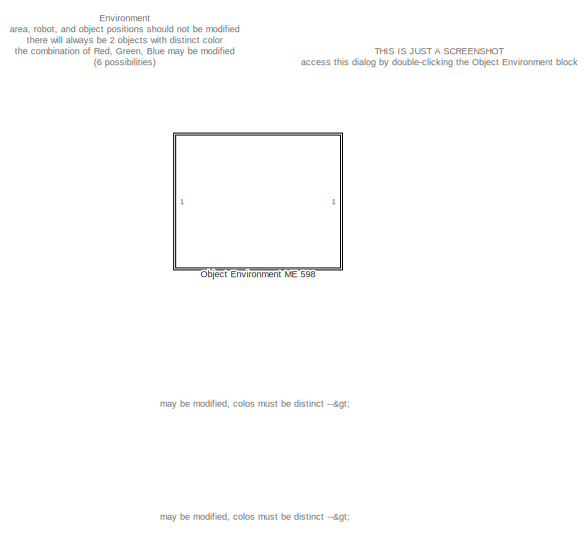
[diagram: root canvas - part 1/3, top left region]
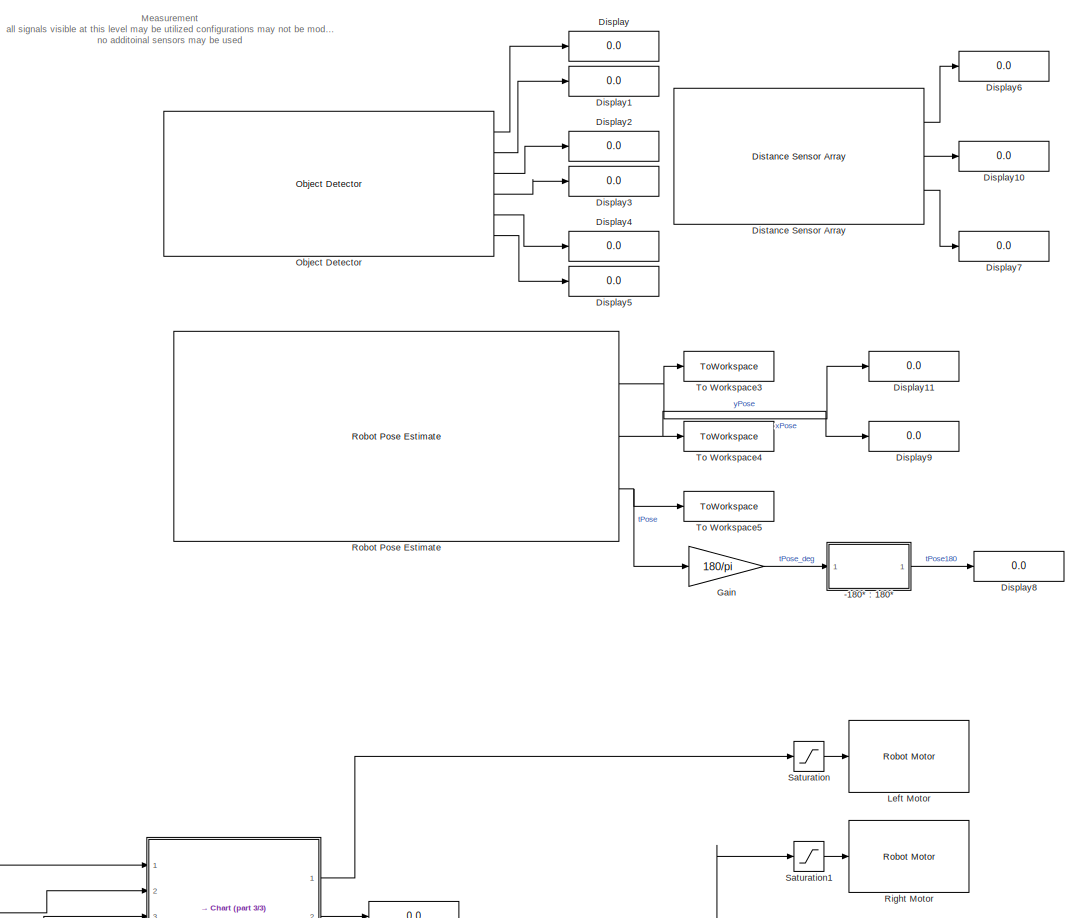
[diagram: root canvas - part 2/3, middle right region]
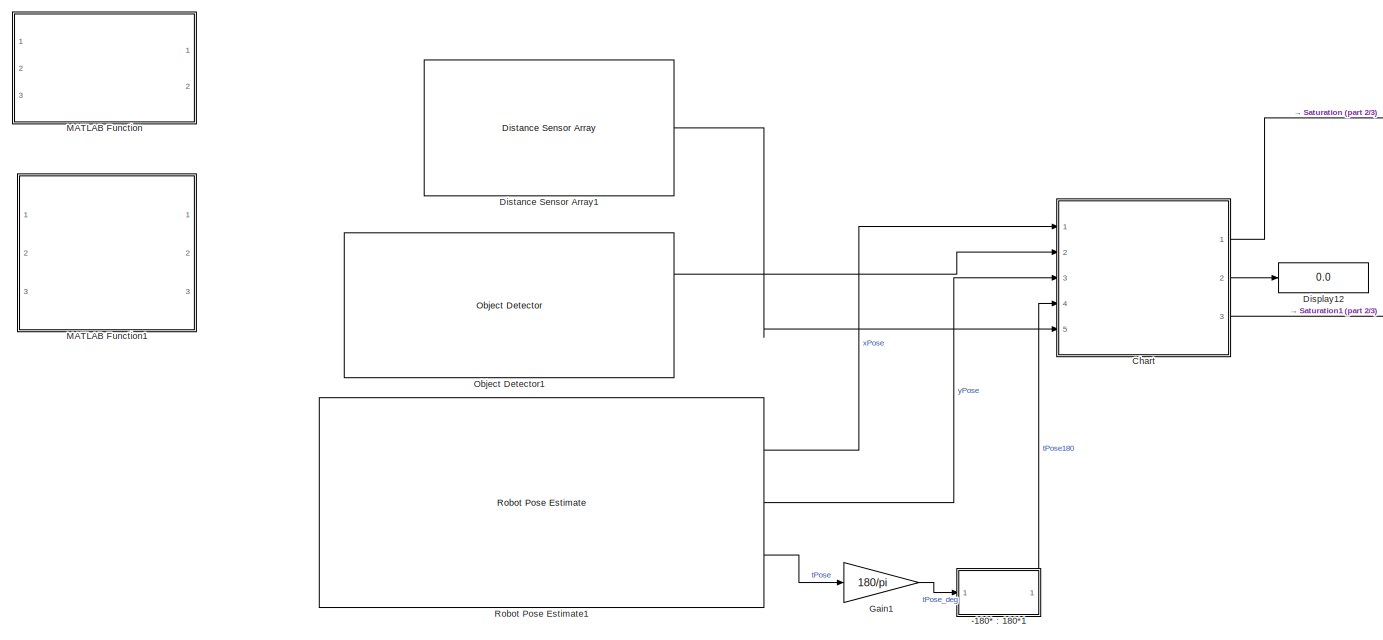
[diagram: root canvas - part 3/3, bottom center region]
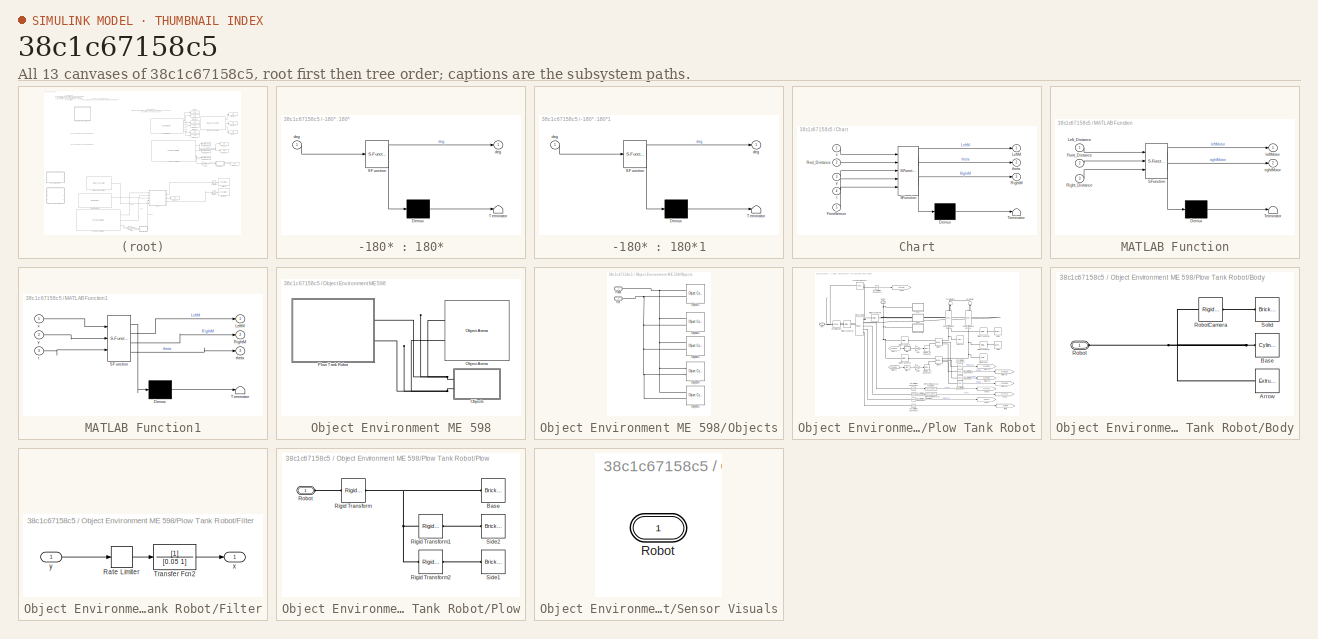
[diagram: thumbnail index - all 13 canvases of the model, root first then tree order]
MODEL slx_38c1c67158c5
KIND model
CONFIG AbsTol = auto
CONFIG EnableMultiTasking = off
CONFIG FixedStep = auto
CONFIG InitFcn = RPInit
CONFIG MaxStep = auto
CONFIG MinStep = auto
CONFIG RelTol = 1e-3
CONFIG SampleTimeConstraint = Unconstrained
CONFIG SolverName = ode23t
CONFIG StartTime = 0.0
CONFIG StopTime = inf
WORKSPACE source: mxarray member
WORKSPACE mapForSim: object (value not decoded)
WORKSPACE occGrid: robotics.BinaryOccupancyGrid (value not decoded)
BLOCK [SubSystem] -180* : 180*
  ErrorFcn = Stateflow.Translate.translate
  PermitHierarchicalResolution = ExplicitOnly
  Ports = [1, 1]
  RequestExecContextInheritance = off
  SFBlockType = MATLAB Function
  TreatAsAtomicUnit = on
BLOCK [Demux] -180* : 180*/ Demux 
  Outputs = 1
  Ports = [1, 1]
BLOCK [S-Function] -180* : 180*/ SFunction 
  EnableBusSupport = on
  FunctionName = sf_sfun
  PortCounts = [1 2]
  Ports = [1, 2]
  SFcnIsStateOwnerBlock = off
  SFunctionDeploymentMode = off
  Tag = Stateflow S-Function 4
BLOCK [Terminator] -180* : 180*/ Terminator 
BLOCK [Outport] -180* : 180*/deg
BLOCK [Inport] -180* : 180*/deg 
BLOCK [SubSystem] -180* : 180*1
  ErrorFcn = Stateflow.Translate.translate
  PermitHierarchicalResolution = ExplicitOnly
  Ports = [1, 1]
  RequestExecContextInheritance = off
  SFBlockType = MATLAB Function
  TreatAsAtomicUnit = on
BLOCK [Demux] -180* : 180*1/ Demux 
  Outputs = 1
  Ports = [1, 1]
BLOCK [S-Function] -180* : 180*1/ SFunction 
  EnableBusSupport = on
  FunctionName = sf_sfun
  PortCounts = [1 2]
  Ports = [1, 2]
  SFcnIsStateOwnerBlock = off
  SFunctionDeploymentMode = off
  Tag = Stateflow S-Function 5
BLOCK [Terminator] -180* : 180*1/ Terminator 
BLOCK [Outport] -180* : 180*1/deg
BLOCK [Inport] -180* : 180*1/deg 
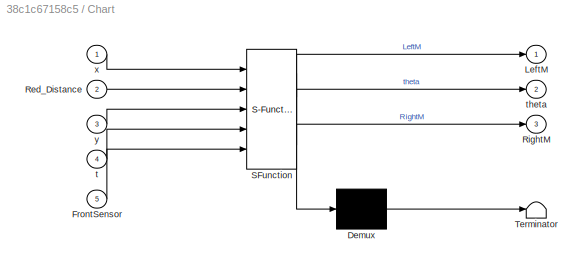
BLOCK [SubSystem] Chart
  ErrorFcn = Stateflow.Translate.translate
  PermitHierarchicalResolution = ExplicitOnly
  Ports = [5, 3]
  RequestExecContextInheritance = off
  SFBlockType = Chart
  TreatAsAtomicUnit = on
BLOCK [Demux] Chart/ Demux 
  Outputs = 1
  Ports = [1, 1]
BLOCK [S-Function] Chart/ SFunction 
  EnableBusSupport = on
  FunctionName = sf_sfun
  PortCounts = [5 4]
  Ports = [5, 4]
  SFcnIsStateOwnerBlock = off
  SFunctionDeploymentMode = off
  Tag = Stateflow S-Function 3
BLOCK [Terminator] Chart/ Terminator 
BLOCK [Inport] Chart/FrontSensor
  Port = 5
BLOCK [Outport] Chart/LeftM
BLOCK [Inport] Chart/Red_Distance
  Port = 2
BLOCK [Outport] Chart/RightM
  Port = 3
BLOCK [Inport] Chart/t
  Port = 4
BLOCK [Outport] Chart/theta
  Port = 2
BLOCK [Inport] Chart/x
BLOCK [Inport] Chart/y
  Port = 3
BLOCK [Display] Display
  Decimation = 1
  Ports = [1]
BLOCK [Display] Display1
  Decimation = 1
  Ports = [1]
BLOCK [Display] Display10
  Decimation = 1
  Ports = [1]
BLOCK [Display] Display11
  Decimation = 1
  Ports = [1]
BLOCK [Display] Display12
  Decimation = 1
  Ports = [1]
BLOCK [Display] Display2
  Decimation = 1
  Ports = [1]
BLOCK [Display] Display3
  Decimation = 1
  Ports = [1]
BLOCK [Display] Display4
  Decimation = 1
  Ports = [1]
BLOCK [Display] Display5
  Decimation = 1
  Ports = [1]
BLOCK [Display] Display6
  Decimation = 1
  Ports = [1]
BLOCK [Display] Display7
  Decimation = 1
  Ports = [1]
BLOCK [Display] Display8
  Decimation = 1
  Ports = [1]
BLOCK [Display] Display9
  Decimation = 1
  Ports = [1]
BLOCK [Reference] Distance Sensor Array  REF=ME598_ProjectLibrary/Distance Sensor Array
  Ports = [0, 3]
  SourceBlock = ME598_ProjectLibrary/Distance Sensor Array
  SourceType = Distance Sensor Array
BLOCK [Reference] Distance Sensor Array1  REF=ME598_ProjectLibrary/Distance Sensor Array
  Ports = [0, 3]
  SourceBlock = ME598_ProjectLibrary/Distance Sensor Array
  SourceType = Distance Sensor Array
BLOCK [Gain] Gain
  Gain = 180/pi
BLOCK [Gain] Gain1
  Gain = 180/pi
BLOCK [Reference] Left Motor  REF=RoboticsPlayground/Basic Sensors and Actuators/Robot Motor
  Ports = [1]
  SourceBlock = RoboticsPlayground/Basic Sensors and Actuators/Robot Motor
  SourceProductName = Robotics Playground
  SourceType = RP Robot Motor
BLOCK [SubSystem] MATLAB Function
  Commented = on
  ErrorFcn = Stateflow.Translate.translate
  PermitHierarchicalResolution = ExplicitOnly
  Ports = [3, 2]
  RequestExecContextInheritance = off
  SFBlockType = MATLAB Function
  TreatAsAtomicUnit = on
BLOCK [Demux] MATLAB Function/ Demux 
  Outputs = 1
  Ports = [1, 1]
BLOCK [S-Function] MATLAB Function/ SFunction 
  EnableBusSupport = on
  FunctionName = sf_sfun
  PortCounts = [3 3]
  Ports = [3, 3]
  SFcnIsStateOwnerBlock = off
  SFunctionDeploymentMode = off
  Tag = Stateflow S-Function 2
BLOCK [Terminator] MATLAB Function/ Terminator 
BLOCK [Inport] MATLAB Function/Front_Distance
  Port = 2
BLOCK [Inport] MATLAB Function/Left_Distance
BLOCK [Inport] MATLAB Function/Right_Distance
  Port = 3
BLOCK [Outport] MATLAB Function/leftMotor
BLOCK [Outport] MATLAB Function/rightMotor
  Port = 2
BLOCK [SubSystem] MATLAB Function1
  Commented = on
  ErrorFcn = Stateflow.Translate.translate
  PermitHierarchicalResolution = ExplicitOnly
  Ports = [3, 3]
  RequestExecContextInheritance = off
  SFBlockType = MATLAB Function
  TreatAsAtomicUnit = on
BLOCK [Demux] MATLAB Function1/ Demux 
  Outputs = 1
  Ports = [1, 1]
BLOCK [S-Function] MATLAB Function1/ SFunction 
  EnableBusSupport = on
  FunctionName = sf_sfun
  PortCounts = [3 4]
  Ports = [3, 4]
  SFcnIsStateOwnerBlock = off
  SFunctionDeploymentMode = off
  Tag = Stateflow S-Function 1
BLOCK [Terminator] MATLAB Function1/ Terminator 
BLOCK [Outport] MATLAB Function1/LeftM
BLOCK [Outport] MATLAB Function1/RightM
  Port = 2
BLOCK [Inport] MATLAB Function1/t
  Port = 3
BLOCK [Outport] MATLAB Function1/theta
  Port = 3
BLOCK [Inport] MATLAB Function1/x
BLOCK [Inport] MATLAB Function1/y
  Port = 2
BLOCK [Reference] Object Detector  REF=ME598_ProjectLibrary/Object Detector
  Ports = [0, 6]
  SourceBlock = ME598_ProjectLibrary/Object Detector
  SourceType = Object Detector
BLOCK [Reference] Object Detector1  REF=ME598_ProjectLibrary/Object Detector
  Ports = [0, 6]
  SourceBlock = ME598_ProjectLibrary/Object Detector
  SourceType = Object Detector
BLOCK [SubSystem] Object Environment ME 598
  CopyFcn = set_param(gcs,'InitFcn','RPInit');\nset_param(gcs,'Solver','ode23t');\nset_param(gcs, 'EnablePacing', 'on')\nset_param(gcs, 'PacingRate', 1)
  Ports = []
  RequestExecContextInheritance = off
BLOCK [Reference] Object Environment ME 598/Object Arena  REF=RP_Simulator_Components/Object Arena
  Ports = [0, 0, 0, 0, 0, 2]
  SourceBlock = RP_Simulator_Components/Object Arena
  SourceProductName = RP Simulator Components
  SourceType = RP Grid Arena
BLOCK [SubSystem] Object Environment ME 598/Objects
  Ports = [0, 0, 0, 0, 0, 2]
  RequestExecContextInheritance = off
BLOCK [Reference] Object Environment ME 598/Objects/Object1  REF=RP_Simulator_Components/Object Contact-Plow Robot
  Ports = [0, 0, 0, 0, 0, 2]
  SourceBlock = RP_Simulator_Components/Object Contact-Plow Robot
  SourceProductName = RP Simulator Components
  SourceType = RP Rectangle-Disc obstacle
BLOCK [Reference] Object Environment ME 598/Objects/Object2  REF=RP_Simulator_Components/Object Contact-Plow Robot
  Commented = on
  Ports = [0, 0, 0, 0, 0, 2]
  SourceBlock = RP_Simulator_Components/Object Contact-Plow Robot
  SourceProductName = RP Simulator Components
  SourceType = RP Rectangle-Disc obstacle
BLOCK [Reference] Object Environment ME 598/Objects/Object3  REF=RP_Simulator_Components/Object Contact-Plow Robot
  Ports = [0, 0, 0, 0, 0, 2]
  SourceBlock = RP_Simulator_Components/Object Contact-Plow Robot
  SourceProductName = RP Simulator Components
  SourceType = RP Rectangle-Disc obstacle
BLOCK [Reference] Object Environment ME 598/Objects/Object4  REF=RP_Simulator_Components/Object Contact-Plow Robot
  Commented = on
  Ports = [0, 0, 0, 0, 0, 2]
  SourceBlock = RP_Simulator_Components/Object Contact-Plow Robot
  SourceProductName = RP Simulator Components
  SourceType = RP Rectangle-Disc obstacle
BLOCK [Reference] Object Environment ME 598/Objects/Object5  REF=RP_Simulator_Components/Object Contact-Plow Robot
  Commented = on
  Ports = [0, 0, 0, 0, 0, 2]
  SourceBlock = RP_Simulator_Components/Object Contact-Plow Robot
  SourceProductName = RP Simulator Components
  SourceType = RP Rectangle-Disc obstacle
BLOCK [PMIOPort] Object Environment ME 598/Objects/Ref
  Port = 2
  Side = Left
BLOCK [PMIOPort] Object Environment ME 598/Objects/Robot
  Side = Left
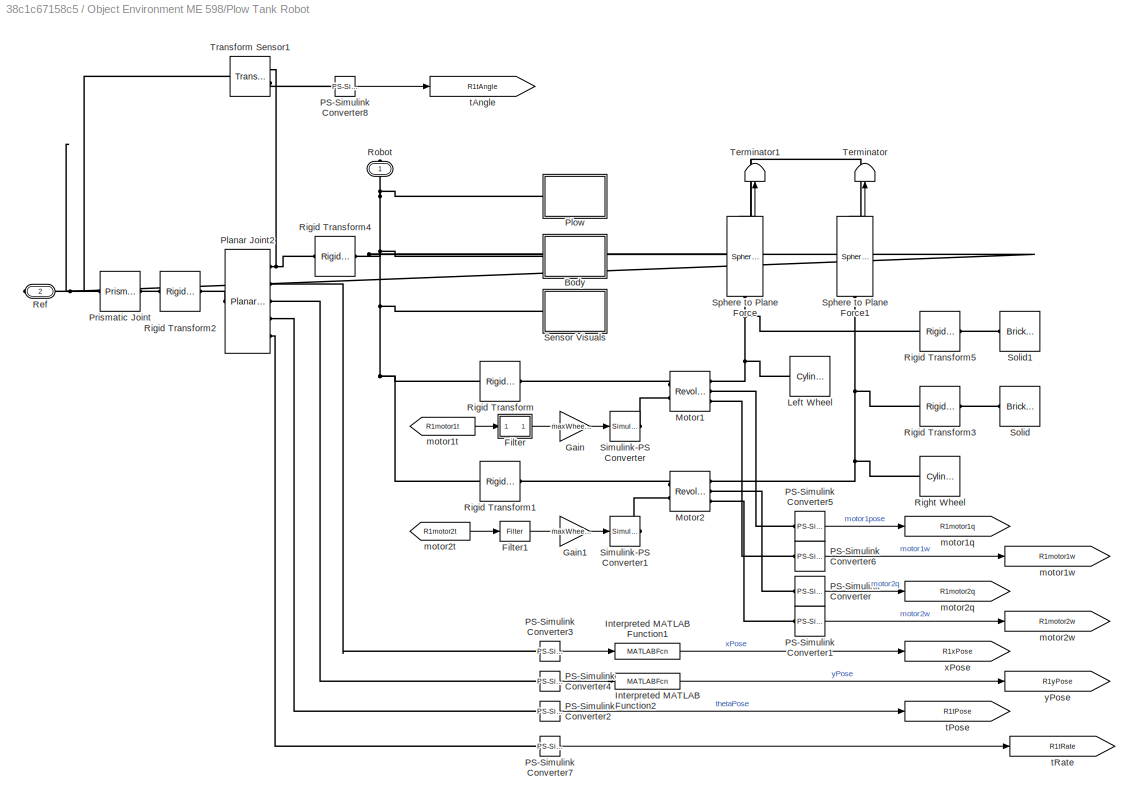
BLOCK [SubSystem] Object Environment ME 598/Plow Tank Robot
  AncestorBlock = RP_Simulator_Components/Plow Tank Robot
  Ports = [0, 0, 0, 0, 0, 0, 2]
  RequestExecContextInheritance = off
BLOCK [SubSystem] Object Environment ME 598/Plow Tank Robot/Body
  Ports = [0, 0, 0, 0, 0, 1]
  RequestExecContextInheritance = off
BLOCK [Reference] Object Environment ME 598/Plow Tank Robot/Body/Arrow  REF=sm_lib/Body Elements/Extruded Solid
  Ports = [0, 0, 0, 0, 0, 0, 1]
  SourceBlock = sm_lib/Body Elements/Extruded Solid
  SourceProductBaseCode = MS
  SourceType = Extruded Solid
BLOCK [Reference] Object Environment ME 598/Plow Tank Robot/Body/Base  REF=sm_lib/Body Elements/Cylindrical Solid
  Ports = [0, 0, 0, 0, 0, 0, 1]
  SourceBlock = sm_lib/Body Elements/Cylindrical Solid
  SourceProductBaseCode = MS
  SourceType = Cylindrical Solid
BLOCK [PMIOPort] Object Environment ME 598/Plow Tank Robot/Body/Robot
  Side = Left
BLOCK [Reference] Object Environment ME 598/Plow Tank Robot/Body/RobotCamera  REF=sm_lib/Frames and
Transforms/Rigid
Transform
  Ports = [0, 0, 0, 0, 0, 1, 1]
  SourceBlock = sm_lib/Frames and\nTransforms/Rigid\nTransform
  SourceProductBaseCode = MS
  SourceType = Rigid\nTransform
BLOCK [Reference] Object Environment ME 598/Plow Tank Robot/Body/Solid  REF=sm_lib/Body Elements/Brick Solid
  Ports = [0, 0, 0, 0, 0, 0, 1]
  SourceBlock = sm_lib/Body Elements/Brick Solid
  SourceProductBaseCode = MS
  SourceType = Brick Solid
BLOCK [SubSystem] Object Environment ME 598/Plow Tank Robot/Filter
  Ports = [1, 1]
  RequestExecContextInheritance = off
BLOCK [RateLimiter] Object Environment ME 598/Plow Tank Robot/Filter/Rate Limiter
  FallingSlewLimit = -300
  RisingSlewLimit = 300
  SampleTimeMode = inherited
BLOCK [TransferFcn] Object Environment ME 598/Plow Tank Robot/Filter/Transfer Fcn2
  Denominator = [0.05 1]
BLOCK [Outport] Object Environment ME 598/Plow Tank Robot/Filter/x
  VectorParamsAs1DForOutWhenUnconnected = off
BLOCK [Inport] Object Environment ME 598/Plow Tank Robot/Filter/y
BLOCK [Reference] Object Environment ME 598/Plow Tank Robot/Filter1  REF=RP_Simulator_Components/Contact Tank Robot/Filter
  Ports = [1, 1]
  SourceBlock = RP_Simulator_Components/Contact Tank Robot/Filter
  SourceProductName = RP Simulator Components
  SourceType = SubSystem
BLOCK [Gain] Object Environment ME 598/Plow Tank Robot/Gain
  Gain = maxWheelTorque/127
BLOCK [Gain] Object Environment ME 598/Plow Tank Robot/Gain1
  Gain = maxWheelTorque/127
BLOCK [MATLABFcn] Object Environment ME 598/Plow Tank Robot/Interpreted MATLAB Function1
  MATLABFcn = u+floorSize(1)/2
  Ports = [1, 1]
BLOCK [MATLABFcn] Object Environment ME 598/Plow Tank Robot/Interpreted MATLAB Function2
  MATLABFcn = u+floorSize(2)/2
  Ports = [1, 1]
BLOCK [Reference] Object Environment ME 598/Plow Tank Robot/Left Wheel  REF=sm_lib/Body Elements/Cylindrical Solid
  Ports = [0, 0, 0, 0, 0, 0, 1]
  SourceBlock = sm_lib/Body Elements/Cylindrical Solid
  SourceProductBaseCode = MS
  SourceType = Cylindrical Solid
BLOCK [Reference] Object Environment ME 598/Plow Tank Robot/Motor1  REF=sm_lib/Joints/Revolute Joint
  Ports = [0, 0, 0, 0, 0, 2, 3]
  SourceBlock = sm_lib/Joints/Revolute Joint
  SourceProductBaseCode = MS
  SourceType = Revolute Joint
BLOCK [Reference] Object Environment ME 598/Plow Tank Robot/Motor2  REF=sm_lib/Joints/Revolute Joint
  Ports = [0, 0, 0, 0, 0, 2, 3]
  SourceBlock = sm_lib/Joints/Revolute Joint
  SourceProductBaseCode = MS
  SourceType = Revolute Joint
BLOCK [Reference] Object Environment ME 598/Plow Tank Robot/PS-Simulink Converter  REF=nesl_utility/PS-Simulink
Converter
  Ports = [0, 1, 0, 0, 0, 1]
  SourceBlock = nesl_utility/PS-Simulink\nConverter
  SourceProductBaseCode = PW,SS
  SourceType = PS-Simulink\nConverter
BLOCK [Reference] Object Environment ME 598/Plow Tank Robot/PS-Simulink Converter1  REF=nesl_utility/PS-Simulink
Converter
  Ports = [0, 1, 0, 0, 0, 1]
  SourceBlock = nesl_utility/PS-Simulink\nConverter
  SourceProductBaseCode = PW,SS
  SourceType = PS-Simulink\nConverter
BLOCK [Reference] Object Environment ME 598/Plow Tank Robot/PS-Simulink Converter2  REF=nesl_utility/PS-Simulink
Converter
  Ports = [0, 1, 0, 0, 0, 1]
  SourceBlock = nesl_utility/PS-Simulink\nConverter
  SourceProductBaseCode = PW,SS
  SourceType = PS-Simulink\nConverter
BLOCK [Reference] Object Environment ME 598/Plow Tank Robot/PS-Simulink Converter3  REF=nesl_utility/PS-Simulink
Converter
  Ports = [0, 1, 0, 0, 0, 1]
  SourceBlock = nesl_utility/PS-Simulink\nConverter
  SourceProductBaseCode = PW,SS
  SourceType = PS-Simulink\nConverter
BLOCK [Reference] Object Environment ME 598/Plow Tank Robot/PS-Simulink Converter4  REF=nesl_utility/PS-Simulink
Converter
  Ports = [0, 1, 0, 0, 0, 1]
  SourceBlock = nesl_utility/PS-Simulink\nConverter
  SourceProductBaseCode = PW,SS
  SourceType = PS-Simulink\nConverter
BLOCK [Reference] Object Environment ME 598/Plow Tank Robot/PS-Simulink Converter5  REF=nesl_utility/PS-Simulink
Converter
  Ports = [0, 1, 0, 0, 0, 1]
  SourceBlock = nesl_utility/PS-Simulink\nConverter
  SourceProductBaseCode = PW,SS
  SourceType = PS-Simulink\nConverter
BLOCK [Reference] Object Environment ME 598/Plow Tank Robot/PS-Simulink Converter6  REF=nesl_utility/PS-Simulink
Converter
  Ports = [0, 1, 0, 0, 0, 1]
  SourceBlock = nesl_utility/PS-Simulink\nConverter
  SourceProductBaseCode = PW,SS
  SourceType = PS-Simulink\nConverter
BLOCK [Reference] Object Environment ME 598/Plow Tank Robot/PS-Simulink Converter7  REF=nesl_utility/PS-Simulink
Converter
  Ports = [0, 1, 0, 0, 0, 1]
  SourceBlock = nesl_utility/PS-Simulink\nConverter
  SourceProductBaseCode = PW,SS
  SourceType = PS-Simulink\nConverter
BLOCK [Reference] Object Environment ME 598/Plow Tank Robot/PS-Simulink Converter8  REF=nesl_utility/PS-Simulink
Converter
  Ports = [0, 1, 0, 0, 0, 1]
  SourceBlock = nesl_utility/PS-Simulink\nConverter
  SourceProductBaseCode = PW,SS
  SourceType = PS-Simulink\nConverter
BLOCK [Reference] Object Environment ME 598/Plow Tank Robot/Planar Joint2  REF=sm_lib/Joints/Planar Joint
  Ports = [0, 0, 0, 0, 0, 1, 5]
  SourceBlock = sm_lib/Joints/Planar Joint
  SourceProductBaseCode = MS
  SourceType = Planar Joint
BLOCK [SubSystem] Object Environment ME 598/Plow Tank Robot/Plow
  Ports = [0, 0, 0, 0, 0, 1]
  RequestExecContextInheritance = off
BLOCK [Reference] Object Environment ME 598/Plow Tank Robot/Plow/Base  REF=sm_lib/Body Elements/Brick Solid
  Ports = [0, 0, 0, 0, 0, 0, 1]
  SourceBlock = sm_lib/Body Elements/Brick Solid
  SourceProductBaseCode = MS
  SourceType = Brick Solid
BLOCK [Reference] Object Environment ME 598/Plow Tank Robot/Plow/Rigid Transform  REF=sm_lib/Frames and
Transforms/Rigid
Transform
  Ports = [0, 0, 0, 0, 0, 1, 1]
  SourceBlock = sm_lib/Frames and\nTransforms/Rigid\nTransform
  SourceProductBaseCode = MS
  SourceType = Rigid\nTransform
BLOCK [Reference] Object Environment ME 598/Plow Tank Robot/Plow/Rigid Transform1  REF=sm_lib/Frames and
Transforms/Rigid
Transform
  Ports = [0, 0, 0, 0, 0, 1, 1]
  SourceBlock = sm_lib/Frames and\nTransforms/Rigid\nTransform
  SourceProductBaseCode = MS
  SourceType = Rigid\nTransform
BLOCK [Reference] Object Environment ME 598/Plow Tank Robot/Plow/Rigid Transform2  REF=sm_lib/Frames and
Transforms/Rigid
Transform
  Ports = [0, 0, 0, 0, 0, 1, 1]
  SourceBlock = sm_lib/Frames and\nTransforms/Rigid\nTransform
  SourceProductBaseCode = MS
  SourceType = Rigid\nTransform
BLOCK [PMIOPort] Object Environment ME 598/Plow Tank Robot/Plow/Robot
  Side = Left
BLOCK [Reference] Object Environment ME 598/Plow Tank Robot/Plow/Side1  REF=sm_lib/Body Elements/Brick Solid
  Ports = [0, 0, 0, 0, 0, 0, 1]
  SourceBlock = sm_lib/Body Elements/Brick Solid
  SourceProductBaseCode = MS
  SourceType = Brick Solid
BLOCK [Reference] Object Environment ME 598/Plow Tank Robot/Plow/Side2  REF=sm_lib/Body Elements/Brick Solid
  Ports = [0, 0, 0, 0, 0, 0, 1]
  SourceBlock = sm_lib/Body Elements/Brick Solid
  SourceProductBaseCode = MS
  SourceType = Brick Solid
BLOCK [Reference] Object Environment ME 598/Plow Tank Robot/Prismatic Joint  REF=sm_lib/Joints/Prismatic
Joint
  Ports = [0, 0, 0, 0, 0, 1, 1]
  SourceBlock = sm_lib/Joints/Prismatic\nJoint
  SourceProductBaseCode = MS
  SourceType = Prismatic\nJoint
BLOCK [PMIOPort] Object Environment ME 598/Plow Tank Robot/Ref
  Port = 2
  Side = Right
BLOCK [Reference] Object Environment ME 598/Plow Tank Robot/Right Wheel  REF=sm_lib/Body Elements/Cylindrical Solid
  NameLocation = top
  Ports = [0, 0, 0, 0, 0, 0, 1]
  SourceBlock = sm_lib/Body Elements/Cylindrical Solid
  SourceProductBaseCode = MS
  SourceType = Cylindrical Solid
BLOCK [Reference] Object Environment ME 598/Plow Tank Robot/Rigid Transform  REF=sm_lib/Frames and
Transforms/Rigid
Transform
  Ports = [0, 0, 0, 0, 0, 1, 1]
  SourceBlock = sm_lib/Frames and\nTransforms/Rigid\nTransform
  SourceProductBaseCode = MS
  SourceType = Rigid\nTransform
BLOCK [Reference] Object Environment ME 598/Plow Tank Robot/Rigid Transform1  REF=sm_lib/Frames and
Transforms/Rigid
Transform
  Ports = [0, 0, 0, 0, 0, 1, 1]
  SourceBlock = sm_lib/Frames and\nTransforms/Rigid\nTransform
  SourceProductBaseCode = MS
  SourceType = Rigid\nTransform
BLOCK [Reference] Object Environment ME 598/Plow Tank Robot/Rigid Transform2  REF=sm_lib/Frames and
Transforms/Rigid
Transform
  Ports = [0, 0, 0, 0, 0, 1, 1]
  SourceBlock = sm_lib/Frames and\nTransforms/Rigid\nTransform
  SourceProductBaseCode = MS
  SourceType = Rigid\nTransform
BLOCK [Reference] Object Environment ME 598/Plow Tank Robot/Rigid Transform3  REF=sm_lib/Frames and
Transforms/Rigid
Transform
  Ports = [0, 0, 0, 0, 0, 1, 1]
  SourceBlock = sm_lib/Frames and\nTransforms/Rigid\nTransform
  SourceProductBaseCode = MS
  SourceType = Rigid\nTransform
BLOCK [Reference] Object Environment ME 598/Plow Tank Robot/Rigid Transform4  REF=sm_lib/Frames and
Transforms/Rigid
Transform
  Ports = [0, 0, 0, 0, 0, 1, 1]
  SourceBlock = sm_lib/Frames and\nTransforms/Rigid\nTransform
  SourceProductBaseCode = MS
  SourceType = Rigid\nTransform
BLOCK [Reference] Object Environment ME 598/Plow Tank Robot/Rigid Transform5  REF=sm_lib/Frames and
Transforms/Rigid
Transform
  Ports = [0, 0, 0, 0, 0, 1, 1]
  SourceBlock = sm_lib/Frames and\nTransforms/Rigid\nTransform
  SourceProductBaseCode = MS
  SourceType = Rigid\nTransform
BLOCK [PMIOPort] Object Environment ME 598/Plow Tank Robot/Robot
  NameLocation = left
  Side = Right
BLOCK [SubSystem] Object Environment ME 598/Plow Tank Robot/Sensor Visuals
  Ports = [0, 0, 0, 0, 0, 1]
  RequestExecContextInheritance = off
BLOCK [PMIOPort] Object Environment ME 598/Plow Tank Robot/Sensor Visuals/Robot
  Side = Left
BLOCK [Reference] Object Environment ME 598/Plow Tank Robot/Simulink-PS Converter  REF=nesl_utility/Simulink-PS
Converter
  Ports = [1, 0, 0, 0, 0, 0, 1]
  SourceBlock = nesl_utility/Simulink-PS\nConverter
  SourceProductBaseCode = PW,SS
  SourceType = Simulink-PS\nConverter
BLOCK [Reference] Object Environment ME 598/Plow Tank Robot/Simulink-PS Converter1  REF=nesl_utility/Simulink-PS
Converter
  Ports = [1, 0, 0, 0, 0, 0, 1]
  SourceBlock = nesl_utility/Simulink-PS\nConverter
  SourceProductBaseCode = PW,SS
  SourceType = Simulink-PS\nConverter
BLOCK [Reference] Object Environment ME 598/Plow Tank Robot/Solid  REF=sm_lib/Body Elements/Brick Solid
  NameLocation = top
  Ports = [0, 0, 0, 0, 0, 0, 1]
  SourceBlock = sm_lib/Body Elements/Brick Solid
  SourceProductBaseCode = MS
  SourceType = Brick Solid
BLOCK [Reference] Object Environment ME 598/Plow Tank Robot/Solid1  REF=sm_lib/Body Elements/Brick Solid
  NameLocation = top
  Ports = [0, 0, 0, 0, 0, 0, 1]
  SourceBlock = sm_lib/Body Elements/Brick Solid
  SourceProductBaseCode = MS
  SourceType = Brick Solid
BLOCK [Reference] Object Environment ME 598/Plow Tank Robot/Sphere to Plane Force  REF=Contact_Forces_Lib/3D/Sphere to Plane Force
  NameLocation = right
  Ports = [0, 1, 0, 0, 0, 1, 1]
  SourceBlock = Contact_Forces_Lib/3D/Sphere to Plane Force
  SourceProductName = Simscape Multibody Contact Forces Library
  SourceType = Sphere to Plane Force
BLOCK [Reference] Object Environment ME 598/Plow Tank Robot/Sphere to Plane Force1  REF=Contact_Forces_Lib/3D/Sphere to Plane Force
  NameLocation = right
  Ports = [0, 1, 0, 0, 0, 1, 1]
  SourceBlock = Contact_Forces_Lib/3D/Sphere to Plane Force
  SourceProductName = Simscape Multibody Contact Forces Library
  SourceType = Sphere to Plane Force
BLOCK [Terminator] Object Environment ME 598/Plow Tank Robot/Terminator
  NameLocation = right
BLOCK [Terminator] Object Environment ME 598/Plow Tank Robot/Terminator1
  NameLocation = right
BLOCK [Reference] Object Environment ME 598/Plow Tank Robot/Transform Sensor1  REF=sm_lib/Frames and
Transforms/Transform
Sensor
  Ports = [0, 0, 0, 0, 0, 1, 2]
  SourceBlock = sm_lib/Frames and\nTransforms/Transform\nSensor
  SourceProductBaseCode = MS
  SourceType = Transform\nSensor
BLOCK [Goto] Object Environment ME 598/Plow Tank Robot/motor1q
  GotoTag = R1motor1q
  TagVisibility = global
BLOCK [From] Object Environment ME 598/Plow Tank Robot/motor1t
  GotoTag = R1motor1t
  TagVisibility = global
BLOCK [Goto] Object Environment ME 598/Plow Tank Robot/motor1w
  GotoTag = R1motor1w
  TagVisibility = global
BLOCK [Goto] Object Environment ME 598/Plow Tank Robot/motor2q
  GotoTag = R1motor2q
  TagVisibility = global
BLOCK [From] Object Environment ME 598/Plow Tank Robot/motor2t
  GotoTag = R1motor2t
  TagVisibility = global
BLOCK [Goto] Object Environment ME 598/Plow Tank Robot/motor2w
  GotoTag = R1motor2w
  TagVisibility = global
BLOCK [Goto] Object Environment ME 598/Plow Tank Robot/tAngle
  GotoTag = R1tAngle
  TagVisibility = global
BLOCK [Goto] Object Environment ME 598/Plow Tank Robot/tPose
  GotoTag = R1tPose
  TagVisibility = global
BLOCK [Goto] Object Environment ME 598/Plow Tank Robot/tRate
  GotoTag = R1tRate
  TagVisibility = global
BLOCK [Goto] Object Environment ME 598/Plow Tank Robot/xPose
  GotoTag = R1xPose
  TagVisibility = global
BLOCK [Goto] Object Environment ME 598/Plow Tank Robot/yPose
  GotoTag = R1yPose
  TagVisibility = global
BLOCK [Reference] Right Motor  REF=RoboticsPlayground/Basic Sensors and Actuators/Robot Motor
  Ports = [1]
  SourceBlock = RoboticsPlayground/Basic Sensors and Actuators/Robot Motor
  SourceProductName = Robotics Playground
  SourceType = RP Robot Motor
BLOCK [Reference] Robot Pose Estimate  REF=ME598_ProjectLibrary/Robot Pose Estimate
  Ports = [0, 3]
  SourceBlock = ME598_ProjectLibrary/Robot Pose Estimate
  SourceType = Robot Pose Estimate
BLOCK [Reference] Robot Pose Estimate1  REF=ME598_ProjectLibrary/Robot Pose Estimate
  Ports = [0, 3]
  SourceBlock = ME598_ProjectLibrary/Robot Pose Estimate
  SourceType = Robot Pose Estimate
BLOCK [Saturate] Saturation
  LowerLimit = -127
  UpperLimit = 127
BLOCK [Saturate] Saturation1
  LowerLimit = -127
  UpperLimit = 127
BLOCK [ToWorkspace] To Workspace3
  FixptAsFi = on
  MaxDataPoints = inf
  Ports = [1]
  SampleTime = -1
  VariableName = xPose
BLOCK [ToWorkspace] To Workspace4
  FixptAsFi = on
  MaxDataPoints = inf
  Ports = [1]
  SampleTime = -1
  VariableName = yPose
BLOCK [ToWorkspace] To Workspace5
  FixptAsFi = on
  MaxDataPoints = inf
  Ports = [1]
  SampleTime = -1
  VariableName = tPose
ANNOTATION (root): may be modified, colos must be distinct -->
ANNOTATION (root): Environment area, robot, and object positions should not be modified there will always be 2 objects with distinct color the combination of Red, Green, Blue may be modified (6 possibilities)
ANNOTATION (root): Measurement all signals visible at this level may be utilized configurations may not be modified no additoinal sensors may be used
ANNOTATION (root): THIS IS JUST A SCREENSHOT access this dialog by double-clicking the Object Environment block
LINE -180* : 180*1:1 -> Chart:4
LINE -180* : 180*:1 -> Display8:1
LINE Chart:1 -> Saturation:1
LINE Chart:2 -> Display12:1
LINE Chart:3 -> Saturation1:1
LINE Distance Sensor Array1:2 -> Chart:5
LINE Distance Sensor Array:1 -> Display6:1
LINE Distance Sensor Array:2 -> Display10:1
LINE Distance Sensor Array:3 -> Display7:1
LINE Gain1:1 -> -180* : 180*1:1
LINE Gain:1 -> -180* : 180*:1
LINE Object Detector1:2 -> Chart:2
LINE Object Detector:1 -> Display:1
LINE Object Detector:2 -> Display1:1
LINE Object Detector:3 -> Display2:1
LINE Object Detector:4 -> Display3:1
LINE Object Detector:5 -> Display4:1
LINE Object Detector:6 -> Display5:1
LINE Robot Pose Estimate1:1 -> Chart:1
LINE Robot Pose Estimate1:2 -> Chart:3
LINE Robot Pose Estimate1:3 -> Gain1:1
NET Robot Pose Estimate:1 -> Display11:1, To Workspace3:1
NET Robot Pose Estimate:2 -> Display9:1, To Workspace4:1
NET Robot Pose Estimate:3 -> Gain:1, To Workspace5:1
LINE Saturation1:1 -> Right Motor:1
LINE Saturation:1 -> Left Motor:1
note: NET lines group one-source signal fan-out (src -> all destinations, sorted); 1:1 wires keep LINE
CHART Chart states=13 transitions=15
  STATE_LABEL 'GoToFirstPuck\n'
  STATE_LABEL 'DriveForward1\nLeftM = 80;\nRightM = 80;'
  STATE_LABEL 'PivotLeft\n\nentry, during:\ntheta = atan2d(1.5-y,0-x);\nLeftM = -40;\nRightM = 40;\n'
  STATE_LABEL 'Stop\n\nLeftM = 0;\nRightM = 0;\n'
  STATE_LABEL '[t>theta-5 && t<theta+2]'
  STATE_LABEL '[Red_Distance < 0.42 && Red_Distance > 0.4]'
  STATE_LABEL 'DriveForward1\nLeftM = 80;\nRightM = 80;'
  STATE_LABEL 'PivotLeft\n\nentry, during:\ntheta = atan2d(1.5-y,0-x);\nLeftM = -40;\nRightM = 40;\n'
  STATE_LABEL 'Stop\n\nLeftM = 0;\nRightM = 0;\n'
  STATE_LABEL 'DriveForward\n\nLMotor = 100\nRMotor = 100'
  STATE_LABEL 'PivotRight\n\nLMotor = -100\nRMotor = 100'
  STATE_LABEL 'GoToFirstEndzone'
  STATE_LABEL 'PivotRight\n\nentry,during:\ntheta = atan2d(2.3-y, 2.3-x);\nLeftM = 40;\nRightM = -40;'
  STATE_LABEL 'DriveForward2\nLeftM = 80;\nRightM = 80;'
  STATE_LABEL 'Reverse\nLeftM = -50;\nRightM = -50;'
  STATE_LABEL 'Stop2\nLeftM =0;\nRightM = 0;'
  STATE_LABEL '[t>theta-5 && t< theta+2]'
  STATE_LABEL '[FrontSensor <0.2]'
  STATE_LABEL 'after(3,sec)'
  STATE_LABEL 'PivotRight\n\nentry,during:\ntheta = atan2d(2.3-y, 2.3-x);\nLeftM = 40;\nRightM = -40;'
  STATE_LABEL 'DriveForward2\nLeftM = 80;\nRightM = 80;'
  STATE_LABEL 'Reverse\nLeftM = -50;\nRightM = -50;'
  STATE_LABEL 'Stop2\nLeftM =0;\nRightM = 0;'
  STATE_LABEL 'NotCenter\n\nLMotor = 100;\nRMotor = 100;'
  STATE_LABEL 'Centered\n\nLMotor = 0;\nRMotor = 0;'
CHART -180* : 180* states=1 transitions=1
  STATE_LABEL 'eML_blk_kernel()'
  STATE_LABEL 'SCRIPT:\nfunction deg = degWrap(deg)\n\n% % Convert radians to degrees\n% deg = 180/pi * rad;\n\n\n% Wrap degree value to the range -180* : +180*\nfor idx = 1:length(deg)\n    while deg(idx) < -180\n        deg(idx) = deg(idx)+360;\n    end\n    \n    while deg(idx) > 180\n        deg(idx) = deg(idx)-360;\n    end\nend\n\nreturn\n'
CHART -180* : 180*1 states=1 transitions=1
  STATE_LABEL 'eML_blk_kernel()'
  STATE_LABEL 'SCRIPT:\nfunction deg = degWrap(deg)\n\n% % Convert radians to degrees\n% deg = 180/pi * rad;\n\n\n% Wrap degree value to the range -180* : +180*\nfor idx = 1:length(deg)\n    while deg(idx) < -180\n        deg(idx) = deg(idx)+360;\n    end\n    \n    while deg(idx) > 180\n        deg(idx) = deg(idx)-360;\n    end\nend\n\nreturn\n'
CHART MATLAB Function1 states=1 transitions=1
  STATE_LABEL 'eML_blk_kernel()'
  STATE_LABEL 'SCRIPT:\nfunction [LeftM,RightM,theta] = fcn(x, y, t)\ntheta = atan2d((1.5-y),(0-x));\nLeftM = -50;\nRightM = 50;\nwhile (t < theta+2 && t > theta-2)\n    LeftM = 80;\n    RightM = 80;\nend\n'
CHART MATLAB Function states=1 transitions=1
  STATE_LABEL 'eML_blk_kernel()'
  STATE_LABEL 'SCRIPT:\nfunction [leftMotor, rightMotor] = test (Left_Distance, Front_Distance, Right_Distance)\n\n    if (Front_Distance < 0.5)\n        leftMotor = -100;\n        rightMotor = 100;\n    \n    elseif (Front_Distance < 0.5 && Right_Distance < 0.5)\n            leftMotor = -100;\n            rightMotor = 100;\n\n    elseif (Right_Distance < 0.5)\n            leftMotor = -100;\n            rightMotor = 100;\n   ...<+65ch>'
CHART  states=0 transitions=0
CHART  states=0 transitions=0
CHART  states=0 transitions=0
CHART  states=0 transitions=0
CHART  states=0 transitions=0
